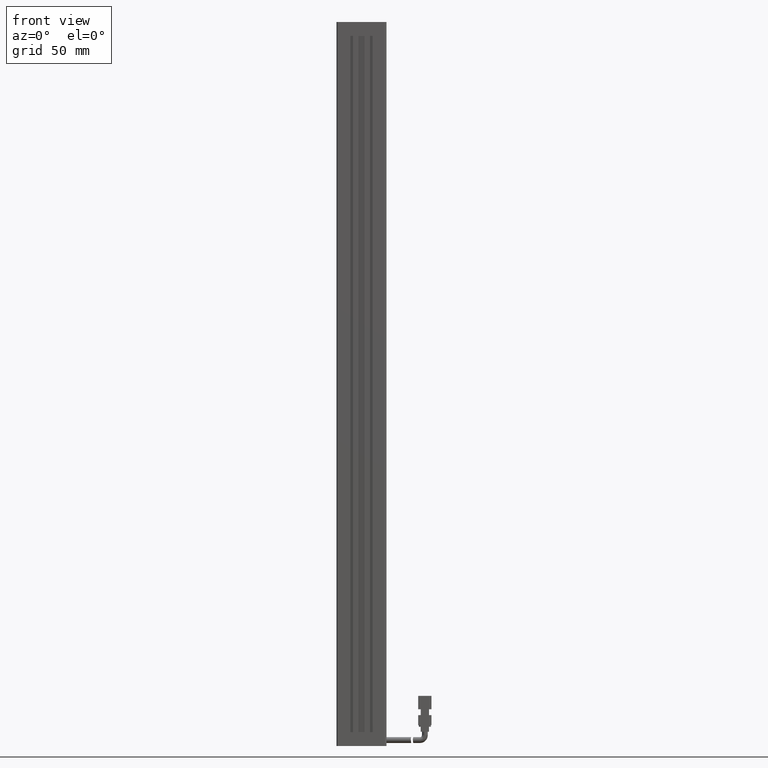
[diagram: clean part render]
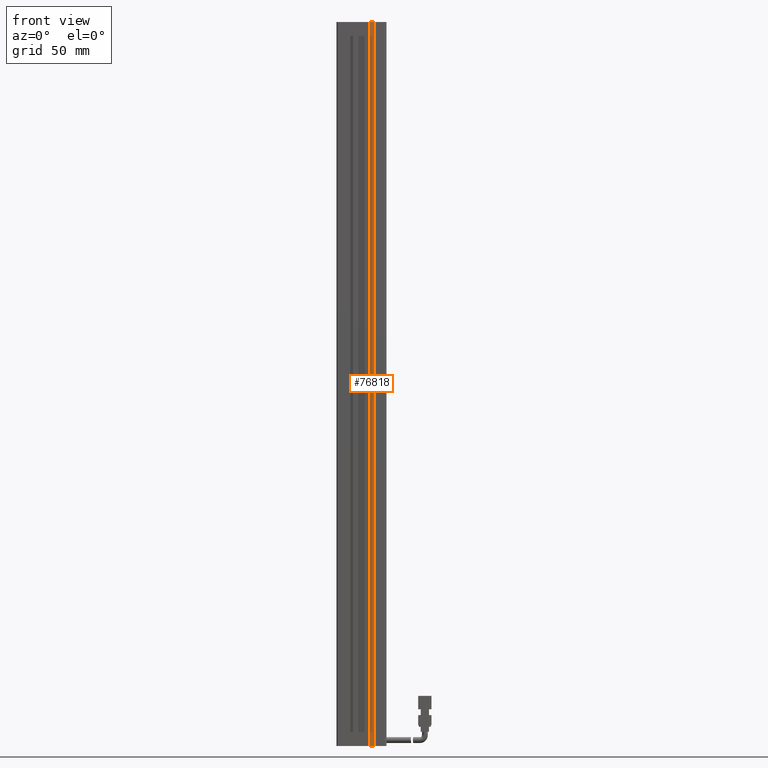
[diagram: same view with one face highlighted and labeled with its STEP entity id]
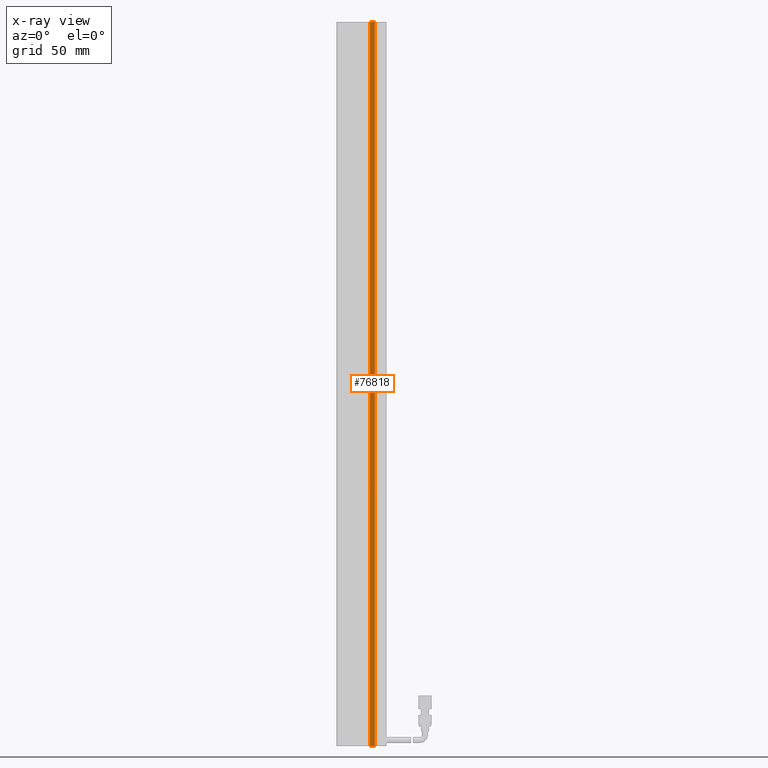
[diagram: x-ray of the same camera — body ghosted, the highlighted face saturated]
A machine part, front view. The second image highlights one B-rep face of the part: STEP entity #76818.
The next image is the same camera in x-ray: the body ghosted, the highlighted face saturated — about 0% of this face is hidden behind the body in this view.
In plain terms, the highlighted planar face has unit normal (0, -1, 0).
Its self-contained STEP definition (entity closure, byte-faithful):
#1084 = VERTEX_POINT ( 'NONE', #32200 ) ;
#5771 = DIRECTION ( 'NONE',  ( 0.0000000000000000000, -0.0000000000000000000, -1.000000000000000000 ) ) ;
#7460 = ORIENTED_EDGE ( 'NONE', *, *, #57913, .F. ) ;
#7897 = CARTESIAN_POINT ( 'NONE',  ( 48.92537974683541800, 16.19594479660386800, 102.0000000000000000 ) ) ;
#9145 = VECTOR ( 'NONE', #64105, 1000.000000000000000 ) ;
#10555 = VECTOR ( 'NONE', #63124, 1000.000000000000000 ) ;
#12289 = EDGE_LOOP ( 'NONE', ( #7460, #63505, #17991, #64514 ) ) ;
#13973 = CARTESIAN_POINT ( 'NONE',  ( 40.92537974683542500, 16.19594479660386800, -332.0000000000000000 ) ) ;
#17991 = ORIENTED_EDGE ( 'NONE', *, *, #70657, .T. ) ;
#21171 = CARTESIAN_POINT ( 'NONE',  ( 40.92537974683542500, 16.19594479660386800, 102.0000000000000000 ) ) ;
#23368 = LINE ( 'NONE', #36433, #37798 ) ;
#27074 = LINE ( 'NONE', #13973, #10555 ) ;
#29860 = CARTESIAN_POINT ( 'NONE',  ( 40.92537974683542500, 16.19594479660386800, 102.0000000000000000 ) ) ;
#30405 = EDGE_CURVE ( 'NONE', #32527, #50069, #49434, .T. ) ;
#32200 = CARTESIAN_POINT ( 'NONE',  ( 45.92537974683541800, 16.19594479660386800, 102.0000000000000000 ) ) ;
#32527 = VERTEX_POINT ( 'NONE', #7897 ) ;
#33534 = FACE_OUTER_BOUND ( 'NONE', #12289, .T. ) ;
#34742 = CARTESIAN_POINT ( 'NONE',  ( 48.92537974683541800, 16.19594479660386800, 102.0000000000000000 ) ) ;
#36054 = DIRECTION ( 'NONE',  ( 0.0000000000000000000, -0.0000000000000000000, -1.000000000000000000 ) ) ;
#36433 = CARTESIAN_POINT ( 'NONE',  ( 45.92537974683541800, 16.19594479660386800, 102.0000000000000000 ) ) ;
#37798 = VECTOR ( 'NONE', #5771, 1000.000000000000000 ) ;
#41948 = PLANE ( 'NONE',  #72266 ) ;
#49434 = LINE ( 'NONE', #34742, #63917 ) ;
#50069 = VERTEX_POINT ( 'NONE', #53586 ) ;
#53586 = CARTESIAN_POINT ( 'NONE',  ( 48.92537974683541800, 16.19594479660386800, -332.0000000000000000 ) ) ;
#56246 = LINE ( 'NONE', #21171, #9145 ) ;
#57913 = EDGE_CURVE ( 'NONE', #1084, #32527, #56246, .T. ) ;
#58016 = CARTESIAN_POINT ( 'NONE',  ( 45.92537974683541800, 16.19594479660386800, -332.0000000000000000 ) ) ;
#58546 = EDGE_CURVE ( 'NONE', #1084, #66114, #23368, .T. ) ;
#63124 = DIRECTION ( 'NONE',  ( 1.000000000000000000, 0.0000000000000000000, 0.0000000000000000000 ) ) ;
#63505 = ORIENTED_EDGE ( 'NONE', *, *, #58546, .T. ) ;
#63917 = VECTOR ( 'NONE', #65313, 1000.000000000000000 ) ;
#64105 = DIRECTION ( 'NONE',  ( 1.000000000000000000, 0.0000000000000000000, 0.0000000000000000000 ) ) ;
#64514 = ORIENTED_EDGE ( 'NONE', *, *, #30405, .F. ) ;
#65313 = DIRECTION ( 'NONE',  ( -0.0000000000000000000, -0.0000000000000000000, -1.000000000000000000 ) ) ;
#66114 = VERTEX_POINT ( 'NONE', #58016 ) ;
#70657 = EDGE_CURVE ( 'NONE', #66114, #50069, #27074, .T. ) ;
#72266 = AXIS2_PLACEMENT_3D ( 'NONE', #29860, #72818, #36054 ) ;
#72818 = DIRECTION ( 'NONE',  ( 0.0000000000000000000, -1.000000000000000000, 0.0000000000000000000 ) ) ;
#76818 = ADVANCED_FACE ( 'NONE', ( #33534 ), #41948, .T. ) ;